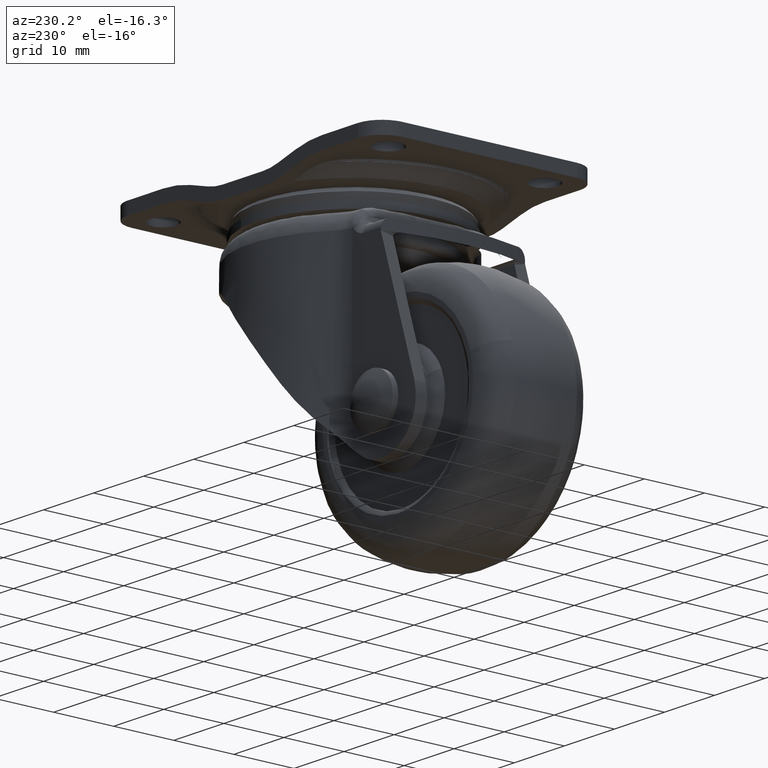
[diagram: clean part render]
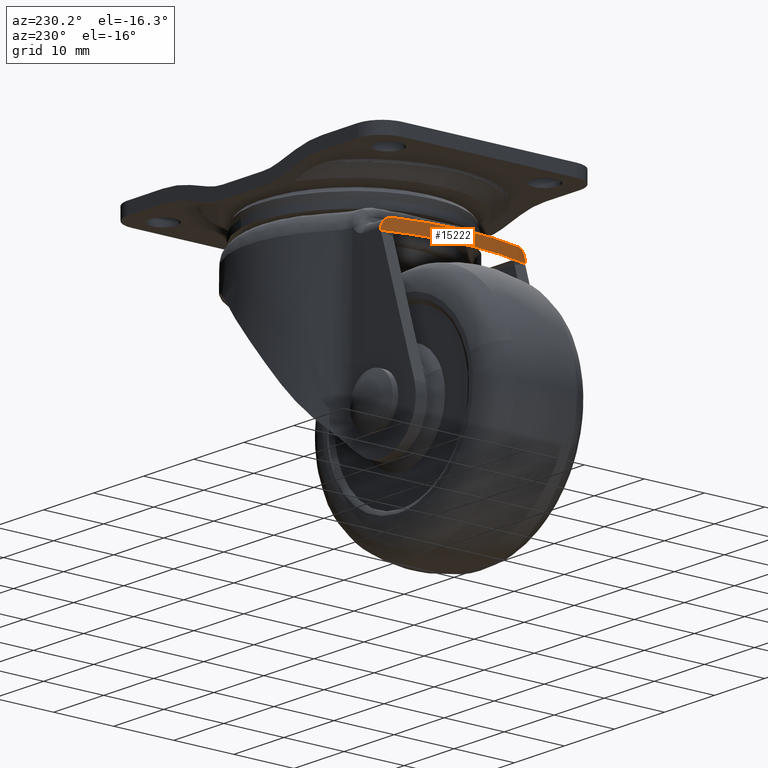
[diagram: same view with one face highlighted and labeled with its STEP entity id]
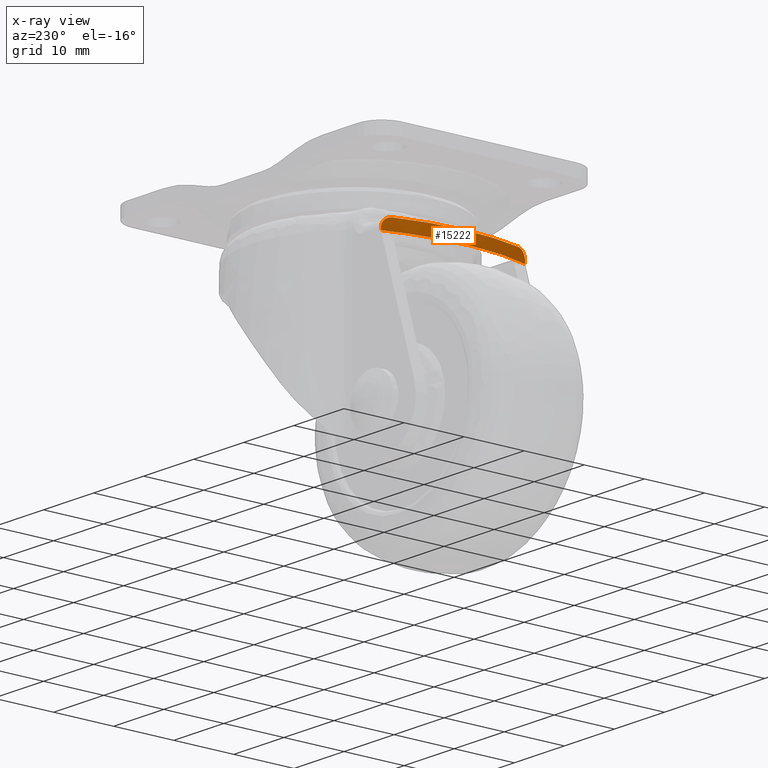
[diagram: x-ray of the same camera — body ghosted, the highlighted face saturated]
A machine part, auxiliary view. The second image highlights one B-rep face of the part: STEP entity #15222.
The next image is the same camera in x-ray: the body ghosted, the highlighted face saturated — about 0% of this face is hidden behind the body in this view.
In plain terms, the highlighted face is a freeform B-spline surface patch.
Its self-contained STEP definition (entity closure, byte-faithful):
#12310=CARTESIAN_POINT('',(-19.761410783995402,12.000123000000000,-12.351680336433819));
#12311=VERTEX_POINT('',#12310);
#12437=CARTESIAN_POINT('',(-19.761410783995402,-12.000122999999981,-12.351680336433819));
#12438=VERTEX_POINT('',#12437);
#13687=CARTESIAN_POINT('',(-19.761410783995402,12.000123000000000,-11.961680336433821));
#13688=VERTEX_POINT('',#13687);
#13694=CARTESIAN_POINT('',(-20.223064214468351,10.500123000000000,-10.461680336433821));
#13695=VERTEX_POINT('',#13694);
#13696=CARTESIAN_POINT('',(-20.223064214468351,10.500123000000000,-10.461680336433821));
#13697=CARTESIAN_POINT('',(-20.195259876425489,10.597528719471510,-10.461680336433821));
#13698=CARTESIAN_POINT('',(-20.167507248540630,10.693288487685541,-10.471077436503620));
#13699=CARTESIAN_POINT('',(-20.125979586272589,10.834574734564240,-10.498654528399230));
#13700=CARTESIAN_POINT('',(-20.112154622208092,10.881275237617579,-10.510110128205470));
#13701=CARTESIAN_POINT('',(-20.084552799364449,10.973874042623400,-10.537639238968501));
#13702=CARTESIAN_POINT('',(-20.070704120754399,11.020008629845790,-10.553819399498250));
#13703=CARTESIAN_POINT('',(-20.029964187386948,11.154834592483420,-10.608622069342260));
#13704=CARTESIAN_POINT('',(-20.003797911703561,11.240237908308320,-10.653401550382680));
#13705=CARTESIAN_POINT('',(-19.966163025456289,11.361707940455210,-10.732854777103380));
#13706=CARTESIAN_POINT('',(-19.953889270278928,11.401084545004981,-10.761400703712511));
#13707=CARTESIAN_POINT('',(-19.929933779864680,11.477527859683519,-10.822784975757330));
#13708=CARTESIAN_POINT('',(-19.918290512688159,11.514469630796990,-10.855563625315551));
#13709=CARTESIAN_POINT('',(-19.885076840786692,11.619345986362900,-10.958229804073730));
#13710=CARTESIAN_POINT('',(-19.864943980776442,11.682225433288050,-11.033049380673150));
#13711=CARTESIAN_POINT('',(-19.838011413502070,11.765764574482990,-11.155093819911340));
#13712=CARTESIAN_POINT('',(-19.829547538637009,11.791907692210630,-11.197620677993379));
#13713=CARTESIAN_POINT('',(-19.813969736175469,11.839874628593490,-11.285248206529481));
#13714=CARTESIAN_POINT('',(-19.806911464510961,11.861528471233351,-11.329988700095980));
#13715=CARTESIAN_POINT('',(-19.787920165193860,11.919652355936650,-11.466934816265740));
#13716=CARTESIAN_POINT('',(-19.778149995702510,11.949355195770920,-11.561837222053811));
#13717=CARTESIAN_POINT('',(-19.768155355679351,11.979693409110530,-11.709869846524210));
#13718=CARTESIAN_POINT('',(-19.765622366971069,11.987368713651771,-11.760067038018470));
#13719=CARTESIAN_POINT('',(-19.762258591769090,11.997557680229050,-11.860501715565549));
#13720=CARTESIAN_POINT('',(-19.761410783995402,12.000123000000000,-11.910965841977280));
#13721=CARTESIAN_POINT('',(-19.761410783995402,12.000123000000000,-11.961680336433821));
#13722=B_SPLINE_CURVE_WITH_KNOTS('',3,(#13696,#13697,#13698,#13699,#13700,#13701,#13702,#13703,#13704,#13705,#13706,#13707,#13708,#13709,#13710,#13711,#13712,#13713,#13714,#13715,#13716,#13717,#13718,#13719,#13720,#13721),.UNSPECIFIED.,.F.,.U.,(4,2,2,2,2,2,2,2,2,2,2,2,4),(0.0,0.124999999999999,0.187499999999998,0.249999999999998,0.374999999999995,0.437499999999994,0.499999999999993,0.624999999999994,0.687499999999995,0.749999999999995,0.874999999999998,0.937499999999999,1.0),.UNSPECIFIED.);
#13723=EDGE_CURVE('',#13695,#13688,#13722,.T.);
#14580=CARTESIAN_POINT('',(-19.761410783995402,-12.000123000000000,-11.961680336433821));
#14581=VERTEX_POINT('',#14580);
#14582=CARTESIAN_POINT('',(-20.223064214468351,-10.500123000000000,-10.461680336433821));
#14583=VERTEX_POINT('',#14582);
#14584=CARTESIAN_POINT('',(-19.761410783995402,-12.000123000000000,-11.961680336433821));
#14585=CARTESIAN_POINT('',(-19.761410783995402,-12.000123000000000,-11.860342173968320));
#14586=CARTESIAN_POINT('',(-19.764772922390009,-11.989959626452251,-11.760849670728790));
#14587=CARTESIAN_POINT('',(-19.774582830923489,-11.960183612811869,-11.614247552478449));
#14588=CARTESIAN_POINT('',(-19.778652738890830,-11.947817432991631,-11.565823029260340));
#14589=CARTESIAN_POINT('',(-19.788410396287350,-11.918097816887840,-11.469877939500350));
#14590=CARTESIAN_POINT('',(-19.794089614620439,-11.900769577211269,-11.422547203706250));
#14591=CARTESIAN_POINT('',(-19.813108519959648,-11.842563721539580,-11.285104852555360));
#14592=CARTESIAN_POINT('',(-19.828513068058019,-11.795218251849599,-11.198446709142161));
#14593=CARTESIAN_POINT('',(-19.855482228809450,-11.711577717411220,-11.075775833702201));
#14594=CARTESIAN_POINT('',(-19.865163012279780,-11.681443100743801,-11.035986737057330));
#14595=CARTESIAN_POINT('',(-19.885391923036678,-11.618173607829130,-10.960486719454140));
#14596=CARTESIAN_POINT('',(-19.906561395057789,-11.551678547197460,-10.888671183959380));
#14597=CARTESIAN_POINT('',(-19.929496208162998,-11.478917976488200,-10.823992206408210));
#14598=CARTESIAN_POINT('',(-19.953283170028818,-11.403024577817160,-10.762871499306330));
#14599=CARTESIAN_POINT('',(-19.965660341747508,-11.363325363300790,-10.733971940842579));
#14600=CARTESIAN_POINT('',(-20.003637869091818,-11.240764301650710,-10.653630123046630));
#14601=CARTESIAN_POINT('',(-20.029835108943612,-11.155251825168939,-10.608876241380051));
#14602=CARTESIAN_POINT('',(-20.070259433540830,-11.021485169446830,-10.554378072327030));
#14603=CARTESIAN_POINT('',(-20.083924306689699,-10.975973336452810,-10.538333113293190));
#14604=CARTESIAN_POINT('',(-20.111625207407901,-10.883060124754110,-10.510573855568460));
#14605=CARTESIAN_POINT('',(-20.125630741647392,-10.835757415097010,-10.498914542154230));
#14606=CARTESIAN_POINT('',(-20.167442602355131,-10.693516646654761,-10.471064418270700));
#14607=CARTESIAN_POINT('',(-20.195281231304708,-10.597453907858560,-10.461680336433821));
#14608=CARTESIAN_POINT('',(-20.223064214468351,-10.500123000000000,-10.461680336433821));
#14609=B_SPLINE_CURVE_WITH_KNOTS('',3,(#14584,#14585,#14586,#14587,#14588,#14589,#14590,#14591,#14592,#14593,#14594,#14595,#14596,#14597,#14598,#14599,#14600,#14601,#14602,#14603,#14604,#14605,#14606,#14607,#14608),.UNSPECIFIED.,.F.,.U.,(4,2,2,2,2,2,1,2,2,2,2,2,4),(0.0,0.125000000000002,0.187500000000001,0.250000000000001,0.375000000000001,0.437500000000001,0.500000000000001,0.562500000000000,0.625000000000000,0.750000000000000,0.812500000000001,0.875000000000001,1.0),.UNSPECIFIED.);
#14610=EDGE_CURVE('',#14581,#14583,#14609,.T.);
#15168=CARTESIAN_POINT('',(-19.370186692689089,13.125194689577361,-10.414430336433824));
#15169=CARTESIAN_POINT('',(-19.370186692689089,13.125194689577361,-12.400111586433823));
#15170=CARTESIAN_POINT('',(-24.166328739373480,-0.004800673367408,-10.414430336433817));
#15171=CARTESIAN_POINT('',(-24.166328739373480,-0.004800673367408,-12.400111586433823));
#15172=CARTESIAN_POINT('',(-19.367091510923892,-13.133665010696383,-10.414430336433821));
#15173=CARTESIAN_POINT('',(-19.367091510923892,-13.133665010696383,-12.400111586433818));
#15181=(BOUNDED_SURFACE()B_SPLINE_SURFACE(1,2,((#15168,#15170,#15172),(#15169,#15171,#15173)),.UNSPECIFIED.,.F.,.F.,.U.)B_SPLINE_SURFACE_WITH_KNOTS((2,2),(3,3),(0.0,1.0),(0.0,27.081270576485640),.UNSPECIFIED.)GEOMETRIC_REPRESENTATION_ITEM()RATIONAL_B_SPLINE_SURFACE(((0.999499785551664,0.935094537787731,0.991655017204348),(0.999499785551664,0.935094537787731,0.991655017204348)))REPRESENTATION_ITEM('')SURFACE());
#15182=CARTESIAN_POINT('',(-19.761410783995402,-12.000122999999981,-12.351680336433819));
#15183=CARTESIAN_POINT('',(-19.761410783995402,-12.000123000000000,-11.961680336433821));
#15184=QUASI_UNIFORM_CURVE('',1,(#15182,#15183),.UNSPECIFIED.,.F.,.U.);
#15185=EDGE_CURVE('',#12438,#14581,#15184,.T.);
#15186=ORIENTED_EDGE('',*,*,#15185,.T.);
#15187=ORIENTED_EDGE('',*,*,#14610,.T.);
#15188=CARTESIAN_POINT('',(-20.223064214468351,-10.500122999999990,-10.461680336433821));
#15189=CARTESIAN_POINT('',(-23.220310895337480,-8.673617E-015,-10.461680336433826));
#15190=CARTESIAN_POINT('',(-20.223064214468359,10.500122999999970,-10.461680336433821));
#15198=(BOUNDED_CURVE()B_SPLINE_CURVE(2,(#15188,#15189,#15190),.UNSPECIFIED.,.F.,.U.)CURVE()GEOMETRIC_REPRESENTATION_ITEM()QUASI_UNIFORM_CURVE()RATIONAL_B_SPLINE_CURVE((1.0,0.961591373488181,1.0))REPRESENTATION_ITEM(''));
#15199=EDGE_CURVE('',#14583,#13695,#15198,.T.);
#15200=ORIENTED_EDGE('',*,*,#15199,.T.);
#15201=ORIENTED_EDGE('',*,*,#13723,.T.);
#15202=CARTESIAN_POINT('',(-19.761410783995402,12.000123000000000,-11.961680336433821));
#15203=CARTESIAN_POINT('',(-19.761410783995402,12.000123000000000,-12.351680336433819));
#15204=QUASI_UNIFORM_CURVE('',1,(#15202,#15203),.UNSPECIFIED.,.F.,.U.);
#15205=EDGE_CURVE('',#13688,#12311,#15204,.T.);
#15206=ORIENTED_EDGE('',*,*,#15205,.T.);
#15207=CARTESIAN_POINT('',(-19.761410783995402,-12.000122999999981,-12.351680336433819));
#15208=CARTESIAN_POINT('',(-23.725925852404021,1.734723E-015,-12.351680336433816));
#15209=CARTESIAN_POINT('',(-19.761410783995391,12.000123000000000,-12.351680336433819));
#15217=(BOUNDED_CURVE()B_SPLINE_CURVE(2,(#15207,#15208,#15209),.UNSPECIFIED.,.F.,.U.)CURVE()GEOMETRIC_REPRESENTATION_ITEM()QUASI_UNIFORM_CURVE()RATIONAL_B_SPLINE_CURVE((1.0,0.949523233462340,1.0))REPRESENTATION_ITEM(''));
#15218=EDGE_CURVE('',#12438,#12311,#15217,.T.);
#15219=ORIENTED_EDGE('',*,*,#15218,.F.);
#15220=EDGE_LOOP('',(#15186,#15187,#15200,#15201,#15206,#15219));
#15221=FACE_OUTER_BOUND('',#15220,.T.);
#15222=ADVANCED_FACE('',(#15221),#15181,.T.);